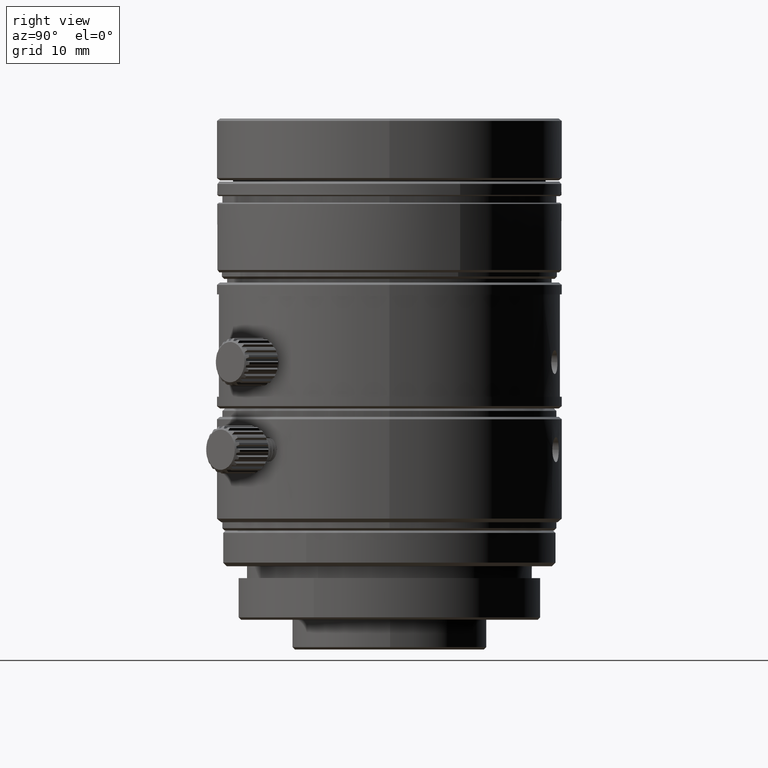
[diagram: clean part render]
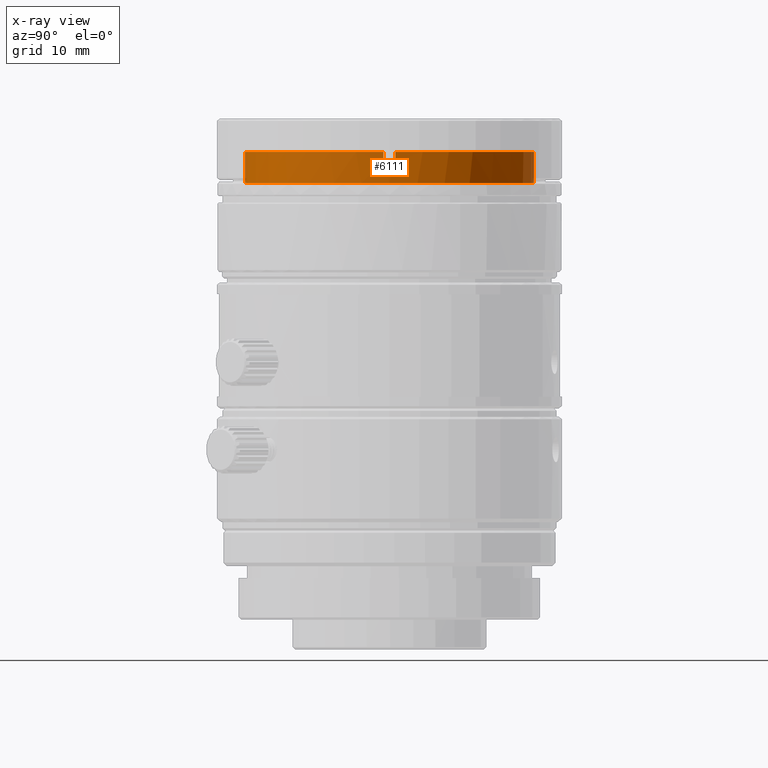
[diagram: x-ray — body ghosted, one internal face saturated and labeled with its STEP entity id]
A machine part, right view, then the same camera in x-ray: the body is ghosted and one INTERNAL B-rep face — a face not visible from any outside direction — is saturated and labeled: STEP entity #6111.
In plain terms, the highlighted cylindrical surface (partial cylindrical patch) has radius 12.15 mm, axis along (0, 0, -1).
Its self-contained STEP definition (entity closure, byte-faithful):
#223 = ORIENTED_EDGE ( 'NONE', *, *, #25695, .T. ) ;
#1256 = DIRECTION ( 'NONE',  ( 0.000000000000000000, 0.000000000000000000, 1.000000000000000000 ) ) ;
#2327 = EDGE_LOOP ( 'NONE', ( #16447, #13274, #28964, #32643, #34930, #223, #5418, #11195 ) ) ;
#2808 = DIRECTION ( 'NONE',  ( 0.000000000000000000, 0.000000000000000000, -1.000000000000000000 ) ) ;
#3396 = EDGE_CURVE ( 'NONE', #28215, #14264, #8129, .T. ) ;
#4032 = DIRECTION ( 'NONE',  ( 0.000000000000000000, -1.000000000000000000, 0.000000000000000000 ) ) ;
#4618 = VERTEX_POINT ( 'NONE', #10541 ) ;
#5018 = CARTESIAN_POINT ( 'NONE',  ( 12.13970757473000006, 0.5000000000000000000, 37.83687768751999414 ) ) ;
#5418 = ORIENTED_EDGE ( 'NONE', *, *, #3396, .T. ) ;
#6111 = ADVANCED_FACE ( 'NONE', ( #27832 ), #10543, .T. ) ;
#6659 = VECTOR ( 'NONE', #7609, 1000.000000000000000 ) ;
#7609 = DIRECTION ( 'NONE',  ( 0.000000000000000000, 0.000000000000000000, -1.000000000000000000 ) ) ;
#7841 = CARTESIAN_POINT ( 'NONE',  ( 12.13970757473000006, -0.5000000000000000000, 37.83687768751999414 ) ) ;
#7852 = CARTESIAN_POINT ( 'NONE',  ( 12.13970757473000006, -0.5000000000000000000, 37.03687768751999698 ) ) ;
#7966 = CARTESIAN_POINT ( 'NONE',  ( 12.13970757473000006, 0.5000000000000000000, 37.83687768751999414 ) ) ;
#7967 = AXIS2_PLACEMENT_3D ( 'NONE', #13110, #8154, #18659 ) ;
#8085 = LINE ( 'NONE', #22075, #24252 ) ;
#8129 = CIRCLE ( 'NONE', #32202, 12.14999999999999680 ) ;
#8154 = DIRECTION ( 'NONE',  ( 0.000000000000000000, 0.000000000000000000, -1.000000000000000000 ) ) ;
#8308 = DIRECTION ( 'NONE',  ( 0.9991528868091992255, 0.04115226337449000987, 0.000000000000000000 ) ) ;
#8559 = EDGE_CURVE ( 'NONE', #15350, #24176, #14977, .T. ) ;
#9064 = CIRCLE ( 'NONE', #28531, 12.14999999999999858 ) ;
#9267 = DIRECTION ( 'NONE',  ( 0.9991528868091992255, 0.04115226337449000987, 0.000000000000000000 ) ) ;
#9640 = CARTESIAN_POINT ( 'NONE',  ( 1.487945860964033983E-15, -12.14999999999999858, 38.18832768752000106 ) ) ;
#10541 = CARTESIAN_POINT ( 'NONE',  ( 12.13970757473000006, -0.5000000000000000000, 37.83687768751999414 ) ) ;
#10543 = CYLINDRICAL_SURFACE ( 'NONE', #7967, 12.14999999999999858 ) ;
#10816 = EDGE_CURVE ( 'NONE', #4618, #14264, #33240, .T. ) ;
#11195 = ORIENTED_EDGE ( 'NONE', *, *, #10816, .F. ) ;
#12121 = CARTESIAN_POINT ( 'NONE',  ( 0.000000000000000000, 0.000000000000000000, 37.83687768751999414 ) ) ;
#12370 = CARTESIAN_POINT ( 'NONE',  ( 0.000000000000000000, 12.14999999982051193, 37.83687768751999414 ) ) ;
#12429 = EDGE_CURVE ( 'NONE', #24176, #27744, #28056, .T. ) ;
#12758 = AXIS2_PLACEMENT_3D ( 'NONE', #19955, #14225, #9267 ) ;
#13110 = CARTESIAN_POINT ( 'NONE',  ( 0.000000000000000000, 0.000000000000000000, 38.18832768752000106 ) ) ;
#13274 = ORIENTED_EDGE ( 'NONE', *, *, #8559, .T. ) ;
#14225 = DIRECTION ( 'NONE',  ( 0.000000000000000000, 0.000000000000000000, 1.000000000000000000 ) ) ;
#14264 = VERTEX_POINT ( 'NONE', #7852 ) ;
#14541 = AXIS2_PLACEMENT_3D ( 'NONE', #15086, #34407, #4032 ) ;
#14715 = EDGE_CURVE ( 'NONE', #25756, #21965, #23935, .T. ) ;
#14977 = LINE ( 'NONE', #9640, #20341 ) ;
#15086 = CARTESIAN_POINT ( 'NONE',  ( 0.000000000000000000, 0.000000000000000000, 35.20787768751999636 ) ) ;
#15350 = VERTEX_POINT ( 'NONE', #33881 ) ;
#15559 = CARTESIAN_POINT ( 'NONE',  ( -1.487945860942322361E-15, -12.14999999982271106, 35.20787768751999636 ) ) ;
#16447 = ORIENTED_EDGE ( 'NONE', *, *, #36134, .F. ) ;
#16725 = DIRECTION ( 'NONE',  ( 0.000000000000000000, 0.000000000000000000, -1.000000000000000000 ) ) ;
#17437 = EDGE_CURVE ( 'NONE', #21965, #27744, #8085, .T. ) ;
#18659 = DIRECTION ( 'NONE',  ( 0.000000000000000000, 1.000000000000000000, 0.000000000000000000 ) ) ;
#19955 = CARTESIAN_POINT ( 'NONE',  ( 0.000000000000000000, 0.000000000000000000, 37.83687768751999414 ) ) ;
#20341 = VECTOR ( 'NONE', #34488, 1000.000000000000000 ) ;
#21965 = VERTEX_POINT ( 'NONE', #12370 ) ;
#22075 = CARTESIAN_POINT ( 'NONE',  ( 0.000000000000000000, 12.14999999999999858, 38.18832768752000106 ) ) ;
#23935 = CIRCLE ( 'NONE', #12758, 12.14999999999999680 ) ;
#24176 = VERTEX_POINT ( 'NONE', #15559 ) ;
#24252 = VECTOR ( 'NONE', #16725, 1000.000000000000000 ) ;
#24319 = CARTESIAN_POINT ( 'NONE',  ( 12.13970757473000006, 0.5000000000000000000, 37.03687768751999698 ) ) ;
#24422 = DIRECTION ( 'NONE',  ( 0.000000000000000000, 0.000000000000000000, -1.000000000000000000 ) ) ;
#25067 = CARTESIAN_POINT ( 'NONE',  ( 0.000000000000000000, 0.000000000000000000, 37.03687768751999698 ) ) ;
#25695 = EDGE_CURVE ( 'NONE', #25756, #28215, #35924, .T. ) ;
#25756 = VERTEX_POINT ( 'NONE', #7966 ) ;
#26442 = CARTESIAN_POINT ( 'NONE',  ( 0.000000000000000000, 12.14999999982271106, 35.20787768751999636 ) ) ;
#27744 = VERTEX_POINT ( 'NONE', #26442 ) ;
#27832 = FACE_OUTER_BOUND ( 'NONE', #2327, .T. ) ;
#28056 = CIRCLE ( 'NONE', #14541, 12.14999999999999858 ) ;
#28215 = VERTEX_POINT ( 'NONE', #24319 ) ;
#28531 = AXIS2_PLACEMENT_3D ( 'NONE', #12121, #1256, #34920 ) ;
#28964 = ORIENTED_EDGE ( 'NONE', *, *, #12429, .T. ) ;
#32202 = AXIS2_PLACEMENT_3D ( 'NONE', #25067, #2808, #8308 ) ;
#32643 = ORIENTED_EDGE ( 'NONE', *, *, #17437, .F. ) ;
#33240 = LINE ( 'NONE', #7841, #34377 ) ;
#33881 = CARTESIAN_POINT ( 'NONE',  ( 1.487945860964033983E-15, -12.14999999999999858, 37.83687768751999414 ) ) ;
#34377 = VECTOR ( 'NONE', #24422, 1000.000000000000000 ) ;
#34407 = DIRECTION ( 'NONE',  ( 0.000000000000000000, 0.000000000000000000, 1.000000000000000000 ) ) ;
#34488 = DIRECTION ( 'NONE',  ( 0.000000000000000000, 0.000000000000000000, -1.000000000000000000 ) ) ;
#34920 = DIRECTION ( 'NONE',  ( 0.000000000000000000, -1.000000000000000000, 0.000000000000000000 ) ) ;
#34930 = ORIENTED_EDGE ( 'NONE', *, *, #14715, .F. ) ;
#35924 = LINE ( 'NONE', #5018, #6659 ) ;
#36134 = EDGE_CURVE ( 'NONE', #15350, #4618, #9064, .T. ) ;